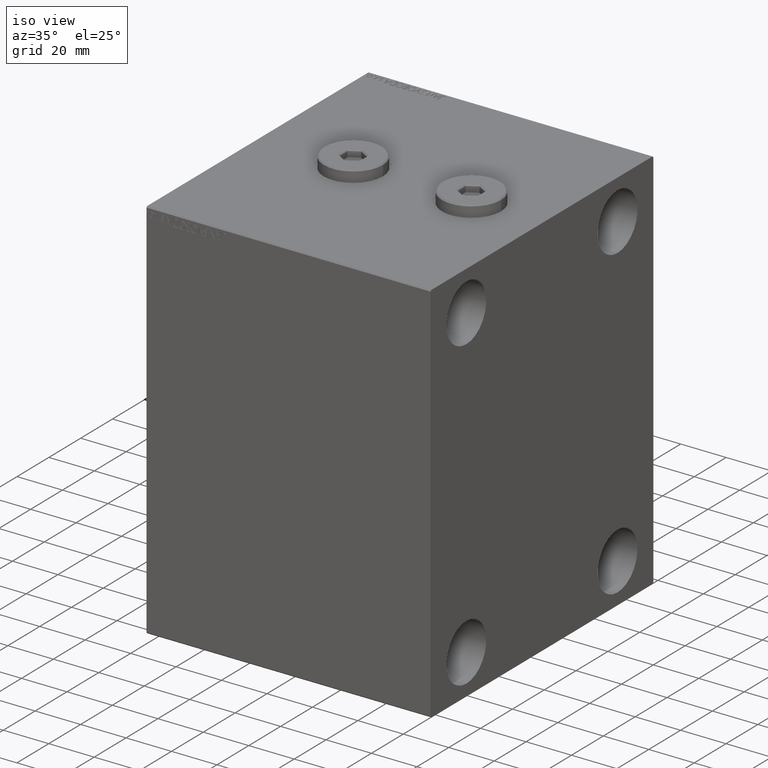
[diagram: clean part render]
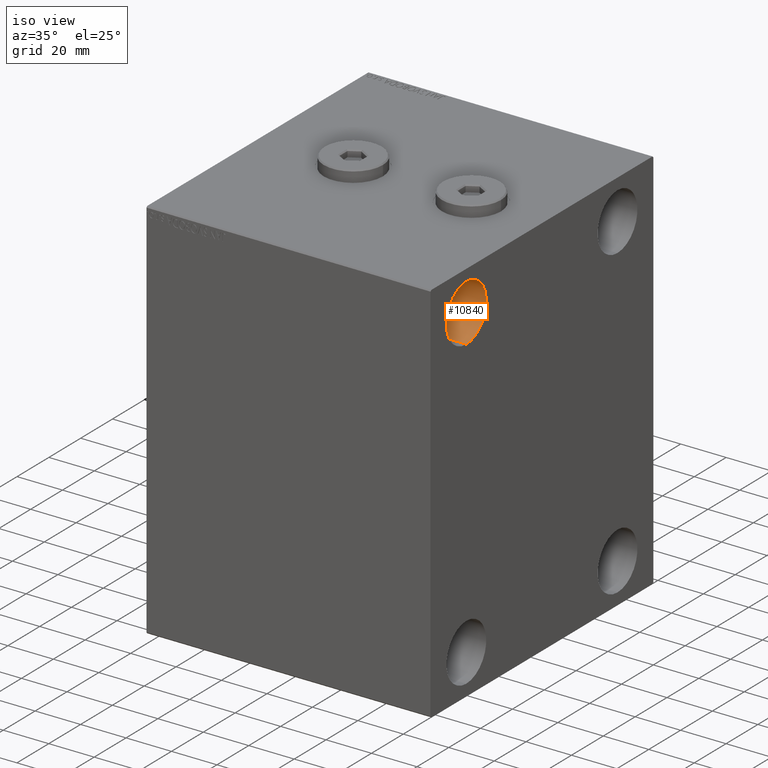
[diagram: same view with one face highlighted and labeled with its STEP entity id]
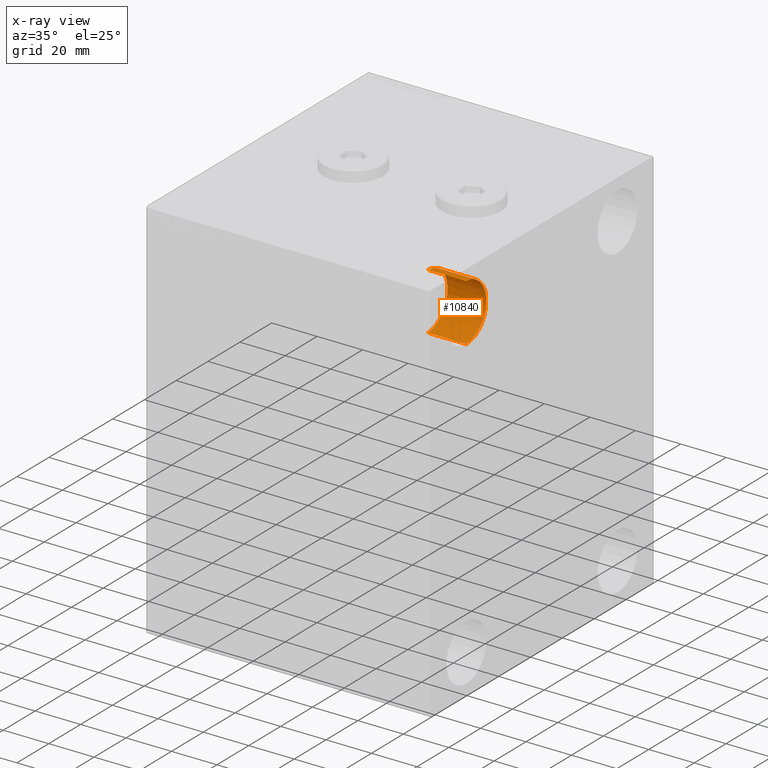
[diagram: x-ray of the same camera — body ghosted, the highlighted face saturated]
A machine part, iso view. The second image highlights one B-rep face of the part: STEP entity #10840.
The next image is the same camera in x-ray: the body ghosted, the highlighted face saturated — about 2% of this face is hidden behind the body in this view.
In plain terms, the highlighted cylindrical surface (edge-blend (fillet) strip) has radius 12.5 mm, axis along (1, 0, 0).
Its self-contained STEP definition (entity closure, byte-faithful):
#2135 = EDGE_CURVE ( 'NONE', #19843, #34187, #2657, .T. ) ;
#2657 = CIRCLE ( 'NONE', #39751, 12.50000000000001066 ) ;
#3815 = VECTOR ( 'NONE', #33632, 1000.000000000000000 ) ;
#4811 = EDGE_CURVE ( 'NONE', #26626, #19843, #28020, .T. ) ;
#4846 = CARTESIAN_POINT ( 'NONE',  ( 125.0000000000000000, -47.49999999999997868, 80.00000000000001421 ) ) ;
#5762 = CARTESIAN_POINT ( 'NONE',  ( 108.0000000000000000, -47.49999999999997868, 67.50000000000000000 ) ) ;
#6715 = CYLINDRICAL_SURFACE ( 'NONE', #16625, 12.50000000000000355 ) ;
#7638 = DIRECTION ( 'NONE',  ( -1.000000000000000000, -0.000000000000000000, -0.000000000000000000 ) ) ;
#8496 = VERTEX_POINT ( 'NONE', #21378 ) ;
#9521 = CARTESIAN_POINT ( 'NONE',  ( 125.0000000000000000, -47.49999999999997868, 55.00000000000000000 ) ) ;
#10840 = ADVANCED_FACE ( 'NONE', ( #41335 ), #6715, .F. ) ;
#11273 = CARTESIAN_POINT ( 'NONE',  ( 125.0000000000000000, -47.49999999999997868, 67.50000000000000000 ) ) ;
#11761 = ORIENTED_EDGE ( 'NONE', *, *, #4811, .F. ) ;
#14328 = DIRECTION ( 'NONE',  ( 1.000000000000000000, -0.000000000000000000, -0.000000000000000000 ) ) ;
#14833 = ORIENTED_EDGE ( 'NONE', *, *, #30923, .T. ) ;
#15792 = DIRECTION ( 'NONE',  ( -1.000000000000000000, -0.000000000000000000, -0.000000000000000000 ) ) ;
#16625 = AXIS2_PLACEMENT_3D ( 'NONE', #27910, #20620, #24485 ) ;
#16968 = AXIS2_PLACEMENT_3D ( 'NONE', #5762, #15792, #26955 ) ;
#19843 = VERTEX_POINT ( 'NONE', #4846 ) ;
#20620 = DIRECTION ( 'NONE',  ( 1.000000000000000000, -0.000000000000000000, -0.000000000000000000 ) ) ;
#21378 = CARTESIAN_POINT ( 'NONE',  ( 108.0000000000000000, -47.49999999999997868, 55.00000000000000000 ) ) ;
#24485 = DIRECTION ( 'NONE',  ( 0.000000000000000000, 0.000000000000000000, -1.000000000000000000 ) ) ;
#25002 = EDGE_CURVE ( 'NONE', #8496, #34187, #33181, .T. ) ;
#26626 = VERTEX_POINT ( 'NONE', #35991 ) ;
#26955 = DIRECTION ( 'NONE',  ( 0.000000000000000000, 0.000000000000000000, 1.000000000000000000 ) ) ;
#27910 = CARTESIAN_POINT ( 'NONE',  ( 108.0000000000000000, -47.49999999999997868, 67.50000000000000000 ) ) ;
#28020 = LINE ( 'NONE', #35297, #31143 ) ;
#28822 = DIRECTION ( 'NONE',  ( 0.000000000000000000, 0.000000000000000000, 1.000000000000000000 ) ) ;
#30923 = EDGE_CURVE ( 'NONE', #26626, #8496, #36588, .T. ) ;
#31143 = VECTOR ( 'NONE', #14328, 1000.000000000000000 ) ;
#33181 = LINE ( 'NONE', #40680, #3815 ) ;
#33632 = DIRECTION ( 'NONE',  ( 1.000000000000000000, -0.000000000000000000, -0.000000000000000000 ) ) ;
#34187 = VERTEX_POINT ( 'NONE', #9521 ) ;
#35297 = CARTESIAN_POINT ( 'NONE',  ( 108.0000000000000000, -47.49999999999997868, 80.00000000000001421 ) ) ;
#35842 = ORIENTED_EDGE ( 'NONE', *, *, #25002, .T. ) ;
#35991 = CARTESIAN_POINT ( 'NONE',  ( 108.0000000000000000, -47.49999999999997868, 80.00000000000001421 ) ) ;
#36588 = CIRCLE ( 'NONE', #16968, 12.50000000000001066 ) ;
#37079 = ORIENTED_EDGE ( 'NONE', *, *, #2135, .F. ) ;
#39751 = AXIS2_PLACEMENT_3D ( 'NONE', #11273, #7638, #28822 ) ;
#40680 = CARTESIAN_POINT ( 'NONE',  ( 108.0000000000000000, -47.49999999999997868, 55.00000000000000000 ) ) ;
#41335 = FACE_OUTER_BOUND ( 'NONE', #41622, .T. ) ;
#41622 = EDGE_LOOP ( 'NONE', ( #11761, #14833, #35842, #37079 ) ) ;